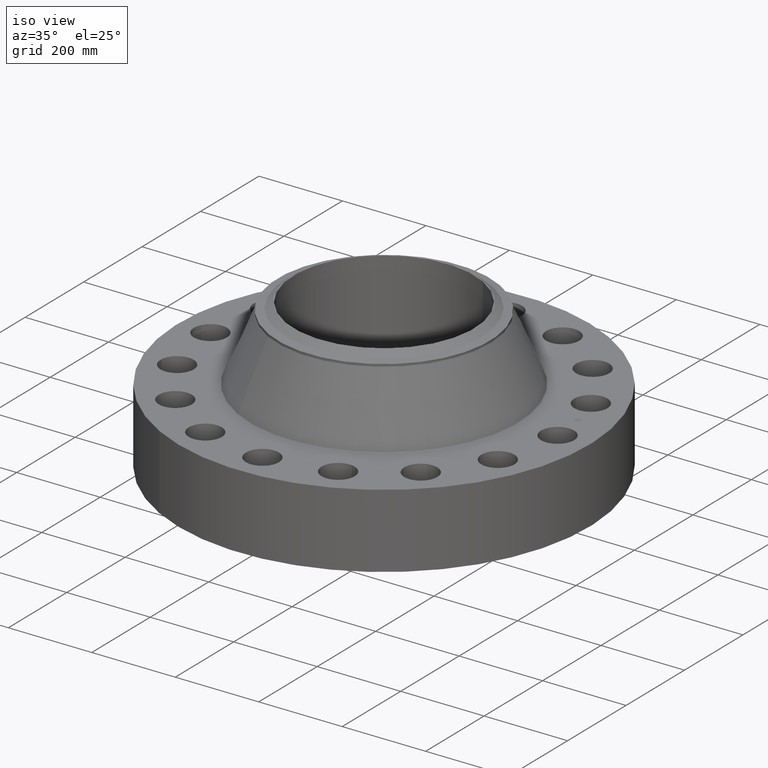
[diagram: clean part render]
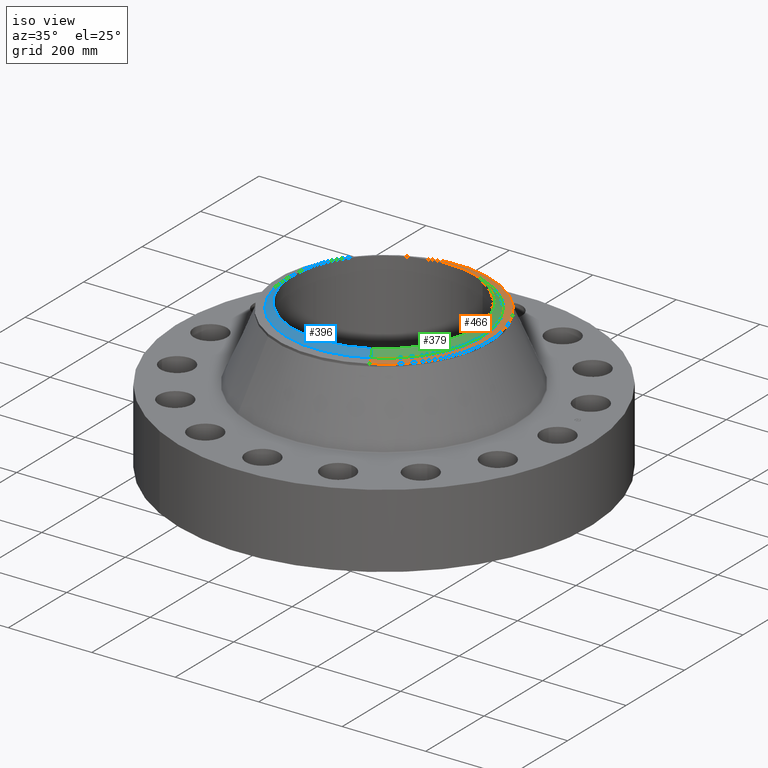
[diagram: same view with three faces highlighted in distinct colors, each labeled with its STEP entity id]
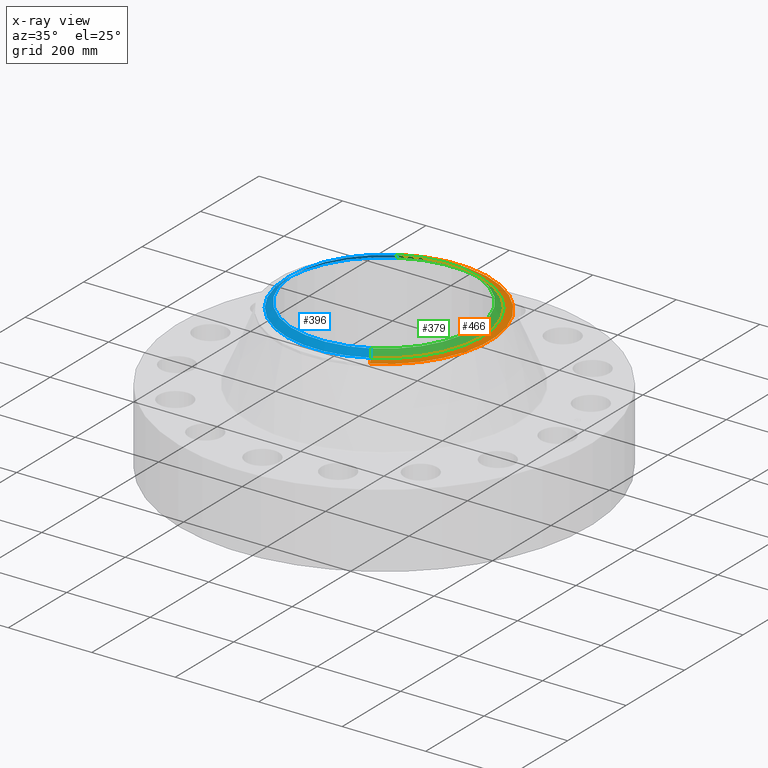
[diagram: x-ray of the same camera — body ghosted, the three highlighted faces saturated]
A machine part, iso view with three faces highlighted in distinct colors.
The next image is the same camera in x-ray (body ghosted, the three faces saturated) — at least one of them is partly hidden behind the body in this view.
Their STEP definitions:

[orange] entity #466 — the highlighted conical surface has half-angle 80 deg.
#270=AXIS2_PLACEMENT_3D('Circle Axis2P3D',#268,#269,$) ;
#297=AXIS2_PLACEMENT_3D('Circle Axis2P3D',#295,#296,$) ;
#311=AXIS2_PLACEMENT_3D('Cone Axis2P3D',#308,#309,#310) ;
#409=AXIS2_PLACEMENT_3D('Circle Axis2P3D',#407,#408,$) ;
#265=CARTESIAN_POINT('Vertex',(4.79425538606,8.77582561894,13.3538423573)) ;
#268=CARTESIAN_POINT('Axis2P3D Location',(0.,0.,13.3538423573)) ;
#272=CARTESIAN_POINT('Vertex',(4.79425538606,-8.77582561894,13.3538423573)) ;
#292=CARTESIAN_POINT('Vertex',(-4.79425538606,8.77582561894,13.3538423573)) ;
#295=CARTESIAN_POINT('Axis2P3D Location',(0.,0.,13.3538423573)) ;
#308=CARTESIAN_POINT('Axis2P3D Location',(0.,0.,13.4814160193)) ;
#313=CARTESIAN_POINT('Line Origine',(4.62082171363,-8.45835741102,13.4176291883)) ;
#317=CARTESIAN_POINT('Vertex',(4.4473880412,-8.14088920311,13.4814160193)) ;
#324=CARTESIAN_POINT('Vertex',(-4.4473880412,8.14088920311,13.4814160193)) ;
#327=CARTESIAN_POINT('Line Origine',(-4.62082171363,8.45835741102,13.4176291883)) ;
#407=CARTESIAN_POINT('Axis2P3D Location',(0.,0.,13.4814160193)) ;
#269=DIRECTION('Axis2P3D Direction',(0.,0.,-0.0393700787402)) ;
#296=DIRECTION('Axis2P3D Direction',(0.,0.,-0.0393700787402)) ;
#309=DIRECTION('Axis2P3D Direction',(-0.,-0.,-0.0393700787402)) ;
#310=DIRECTION('Axis2P3D XDirection',(-0.0188750212049,0.0345504945626,0.)) ;
#314=DIRECTION('Vector Direction',(0.0185882672208,-0.0340255949157,-0.00683654242783)) ;
#328=DIRECTION('Vector Direction',(-0.0185882672208,0.0340255949157,-0.00683654242783)) ;
#408=DIRECTION('Axis2P3D Direction',(0.,0.,0.0393700787402)) ;
#315=VECTOR('Line Direction',#314,0.0393700787402) ;
#329=VECTOR('Line Direction',#328,0.0393700787402) ;
#460=ORIENTED_EDGE('',*,*,#331,.F.) ;
#461=ORIENTED_EDGE('',*,*,#411,.F.) ;
#462=ORIENTED_EDGE('',*,*,#319,.T.) ;
#463=ORIENTED_EDGE('',*,*,#274,.T.) ;
#464=ORIENTED_EDGE('',*,*,#299,.F.) ;
#466=ADVANCED_FACE('PartBody',(#465),#312,.T.) ;
#271=CIRCLE('generated circle',#270,10.) ;
#298=CIRCLE('generated circle',#297,10.) ;
#410=CIRCLE('generated circle',#409,9.27649380996) ;
#312=CONICAL_SURFACE('Cone',#311,9.27649380996,1.3962634016) ;
#274=EDGE_CURVE('',#273,#266,#271,.F.) ;
#299=EDGE_CURVE('',#293,#266,#298,.T.) ;
#319=EDGE_CURVE('',#318,#273,#316,.T.) ;
#331=EDGE_CURVE('',#325,#293,#330,.T.) ;
#411=EDGE_CURVE('',#318,#325,#410,.T.) ;
#459=EDGE_LOOP('',(#460,#461,#462,#463,#464)) ;
#465=FACE_OUTER_BOUND('',#459,.T.) ;
#316=LINE('Line',#313,#315) ;
#330=LINE('Line',#327,#329) ;
#266=VERTEX_POINT('',#265) ;
#273=VERTEX_POINT('',#272) ;
#293=VERTEX_POINT('',#292) ;
#318=VERTEX_POINT('',#317) ;
#325=VERTEX_POINT('',#324) ;

[blue] entity #396 — the highlighted conical surface has half-angle 52.5 deg.
#343=AXIS2_PLACEMENT_3D('Cone Axis2P3D',#340,#341,#342) ;
#382=AXIS2_PLACEMENT_3D('Circle Axis2P3D',#380,#381,$) ;
#387=AXIS2_PLACEMENT_3D('Circle Axis2P3D',#385,#386,$) ;
#340=CARTESIAN_POINT('Axis2P3D Location',(0.,0.,14.0000000001)) ;
#349=CARTESIAN_POINT('Vertex',(4.11286712056,-7.52855276522,14.0000000001)) ;
#351=CARTESIAN_POINT('Vertex',(-4.11286712056,7.52855276522,14.0000000001)) ;
#354=CARTESIAN_POINT('Line Origine',(4.26780842311,-7.81217091713,13.7520143726)) ;
#358=CARTESIAN_POINT('Vertex',(4.42274972566,-8.09578906903,13.5040287452)) ;
#365=CARTESIAN_POINT('Vertex',(-4.42274972566,8.09578906903,13.5040287452)) ;
#368=CARTESIAN_POINT('Line Origine',(-4.26780842311,7.81217091713,13.7520143726)) ;
#380=CARTESIAN_POINT('Axis2P3D Location',(0.,0.,14.0000000001)) ;
#385=CARTESIAN_POINT('Axis2P3D Location',(0.,0.,13.5040287452)) ;
#341=DIRECTION('Axis2P3D Direction',(-0.,-0.,-0.0393700787402)) ;
#342=DIRECTION('Axis2P3D XDirection',(0.0188750212049,-0.0345504945626,0.)) ;
#355=DIRECTION('Vector Direction',(0.014974561121,-0.02741075027,-0.023966985394)) ;
#369=DIRECTION('Vector Direction',(-0.014974561121,0.02741075027,-0.023966985394)) ;
#381=DIRECTION('Axis2P3D Direction',(0.,0.,-0.0393700787402)) ;
#386=DIRECTION('Axis2P3D Direction',(0.,0.,-0.0393700787402)) ;
#356=VECTOR('Line Direction',#355,0.0393700787402) ;
#370=VECTOR('Line Direction',#369,0.0393700787402) ;
#391=ORIENTED_EDGE('',*,*,#384,.F.) ;
#392=ORIENTED_EDGE('',*,*,#372,.T.) ;
#393=ORIENTED_EDGE('',*,*,#389,.T.) ;
#394=ORIENTED_EDGE('',*,*,#360,.F.) ;
#396=ADVANCED_FACE('PartBody',(#395),#344,.T.) ;
#383=CIRCLE('generated circle',#382,8.57874015751) ;
#388=CIRCLE('generated circle',#387,9.22510248106) ;
#344=CONICAL_SURFACE('Cone',#343,8.57874015751,0.916297857297) ;
#360=EDGE_CURVE('',#350,#359,#357,.T.) ;
#372=EDGE_CURVE('',#352,#366,#371,.T.) ;
#384=EDGE_CURVE('',#352,#350,#383,.F.) ;
#389=EDGE_CURVE('',#366,#359,#388,.F.) ;
#390=EDGE_LOOP('',(#391,#392,#393,#394)) ;
#395=FACE_OUTER_BOUND('',#390,.T.) ;
#357=LINE('Line',#354,#356) ;
#371=LINE('Line',#368,#370) ;
#350=VERTEX_POINT('',#349) ;
#352=VERTEX_POINT('',#351) ;
#359=VERTEX_POINT('',#358) ;
#366=VERTEX_POINT('',#365) ;

[green] entity #379 — the highlighted conical surface has half-angle 52.5 deg.
#343=AXIS2_PLACEMENT_3D('Cone Axis2P3D',#340,#341,#342) ;
#347=AXIS2_PLACEMENT_3D('Circle Axis2P3D',#345,#346,$) ;
#363=AXIS2_PLACEMENT_3D('Circle Axis2P3D',#361,#362,$) ;
#340=CARTESIAN_POINT('Axis2P3D Location',(0.,0.,14.0000000001)) ;
#345=CARTESIAN_POINT('Axis2P3D Location',(0.,0.,14.0000000001)) ;
#349=CARTESIAN_POINT('Vertex',(4.11286712056,-7.52855276522,14.0000000001)) ;
#351=CARTESIAN_POINT('Vertex',(-4.11286712056,7.52855276522,14.0000000001)) ;
#354=CARTESIAN_POINT('Line Origine',(4.26780842311,-7.81217091713,13.7520143726)) ;
#358=CARTESIAN_POINT('Vertex',(4.42274972566,-8.09578906903,13.5040287452)) ;
#361=CARTESIAN_POINT('Axis2P3D Location',(0.,0.,13.5040287452)) ;
#365=CARTESIAN_POINT('Vertex',(-4.42274972566,8.09578906903,13.5040287452)) ;
#368=CARTESIAN_POINT('Line Origine',(-4.26780842311,7.81217091713,13.7520143726)) ;
#341=DIRECTION('Axis2P3D Direction',(-0.,-0.,-0.0393700787402)) ;
#342=DIRECTION('Axis2P3D XDirection',(0.0188750212049,-0.0345504945626,0.)) ;
#346=DIRECTION('Axis2P3D Direction',(0.,0.,-0.0393700787402)) ;
#355=DIRECTION('Vector Direction',(0.014974561121,-0.02741075027,-0.023966985394)) ;
#362=DIRECTION('Axis2P3D Direction',(0.,0.,-0.0393700787402)) ;
#369=DIRECTION('Vector Direction',(-0.014974561121,0.02741075027,-0.023966985394)) ;
#356=VECTOR('Line Direction',#355,0.0393700787402) ;
#370=VECTOR('Line Direction',#369,0.0393700787402) ;
#374=ORIENTED_EDGE('',*,*,#353,.F.) ;
#375=ORIENTED_EDGE('',*,*,#360,.T.) ;
#376=ORIENTED_EDGE('',*,*,#367,.T.) ;
#377=ORIENTED_EDGE('',*,*,#372,.F.) ;
#379=ADVANCED_FACE('PartBody',(#378),#344,.T.) ;
#348=CIRCLE('generated circle',#347,8.57874015751) ;
#364=CIRCLE('generated circle',#363,9.22510248106) ;
#344=CONICAL_SURFACE('Cone',#343,8.57874015751,0.916297857297) ;
#353=EDGE_CURVE('',#350,#352,#348,.F.) ;
#360=EDGE_CURVE('',#350,#359,#357,.T.) ;
#367=EDGE_CURVE('',#359,#366,#364,.F.) ;
#372=EDGE_CURVE('',#352,#366,#371,.T.) ;
#373=EDGE_LOOP('',(#374,#375,#376,#377)) ;
#378=FACE_OUTER_BOUND('',#373,.T.) ;
#357=LINE('Line',#354,#356) ;
#371=LINE('Line',#368,#370) ;
#350=VERTEX_POINT('',#349) ;
#352=VERTEX_POINT('',#351) ;
#359=VERTEX_POINT('',#358) ;
#366=VERTEX_POINT('',#365) ;